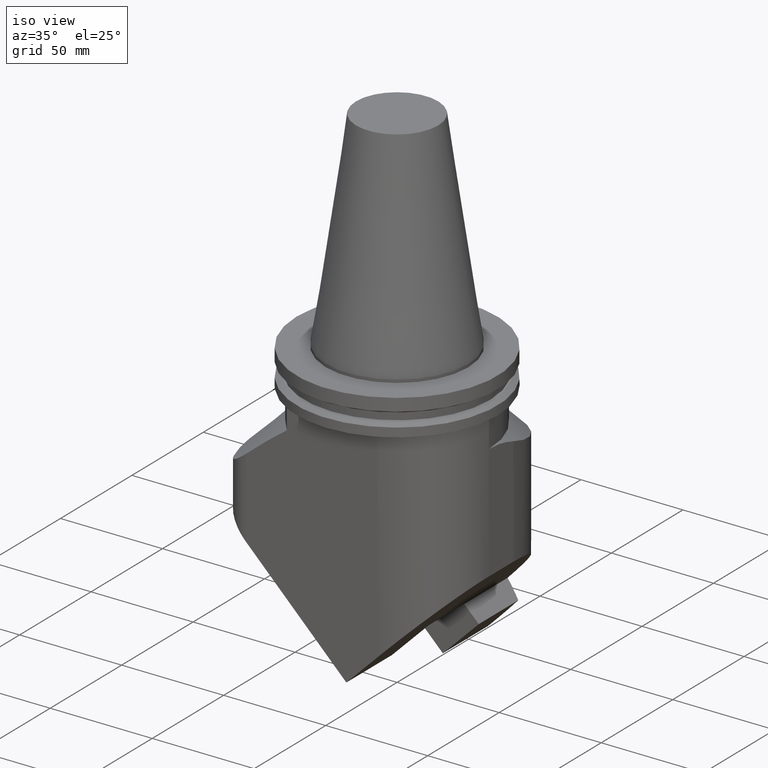
[diagram: clean part render]
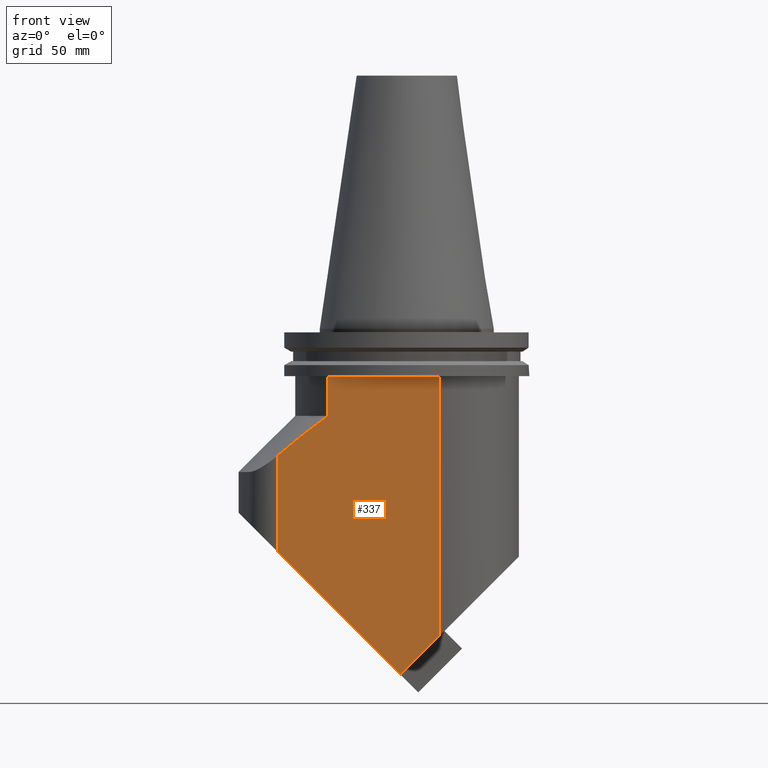
[diagram: tour spotlight — one face highlighted and labeled with its STEP entity id]
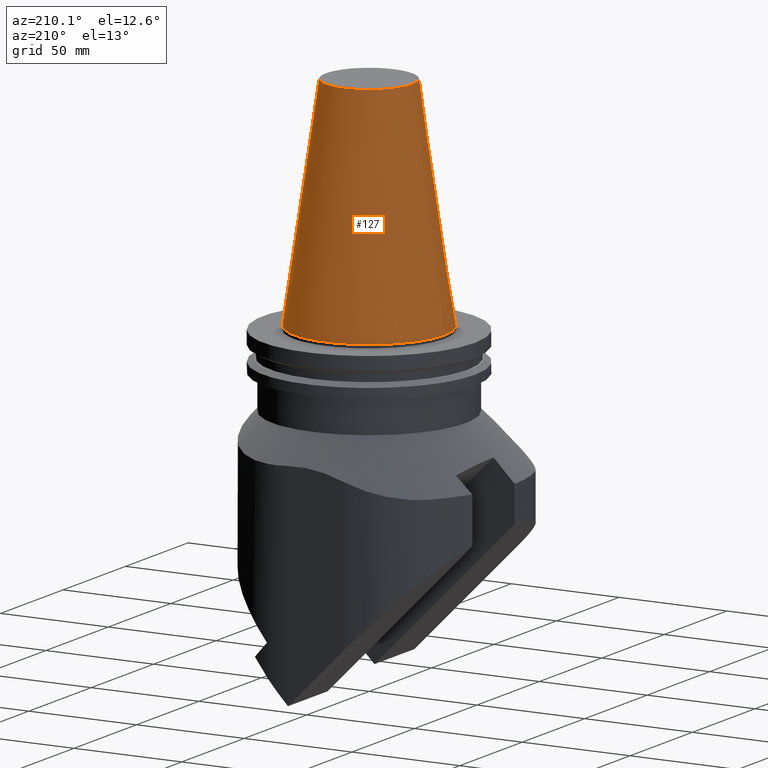
[diagram: tour spotlight — one face highlighted and labeled with its STEP entity id]
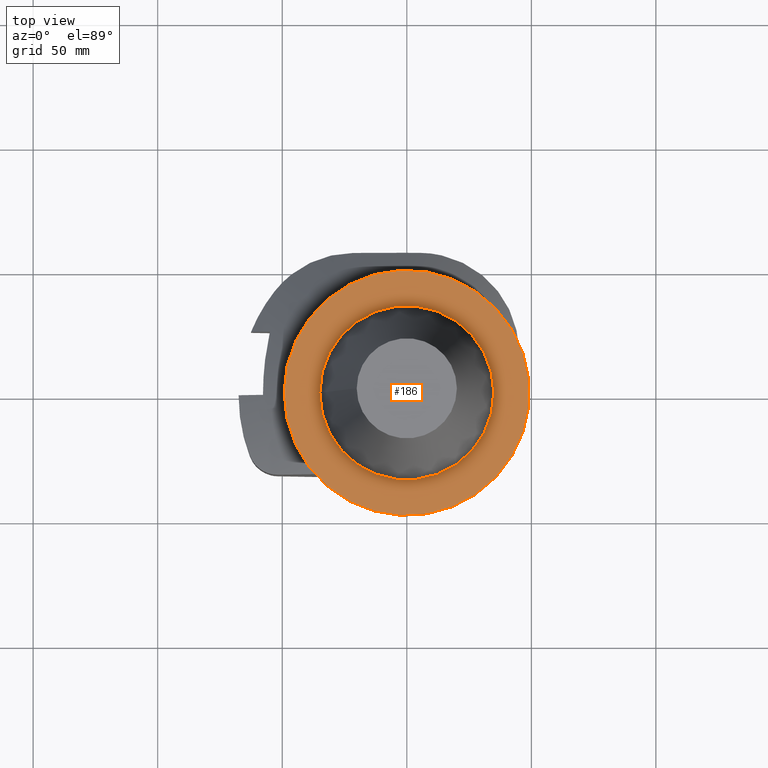
[diagram: tour spotlight — one face highlighted and labeled with its STEP entity id]
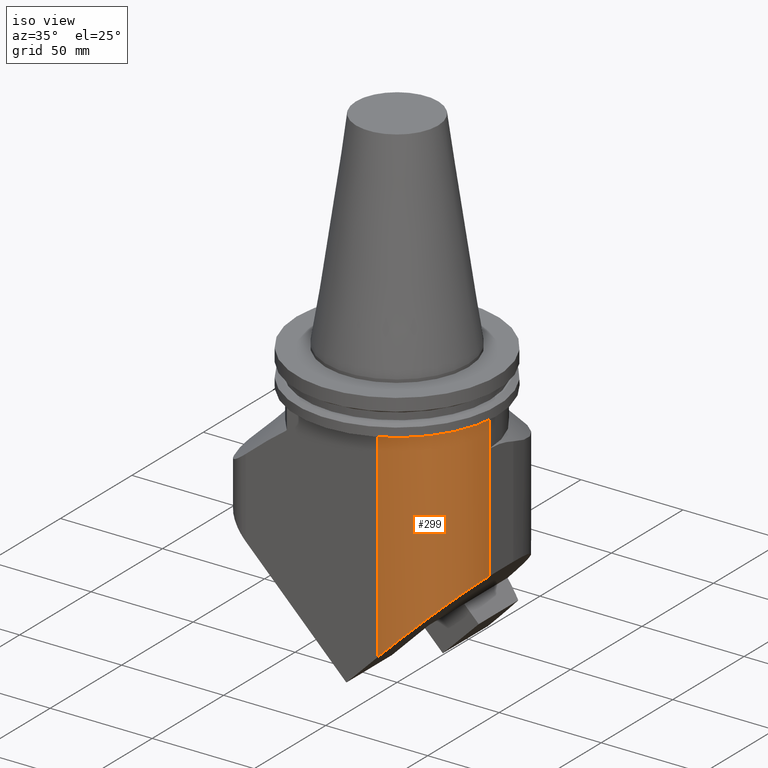
[diagram: tour spotlight — one face highlighted and labeled with its STEP entity id]
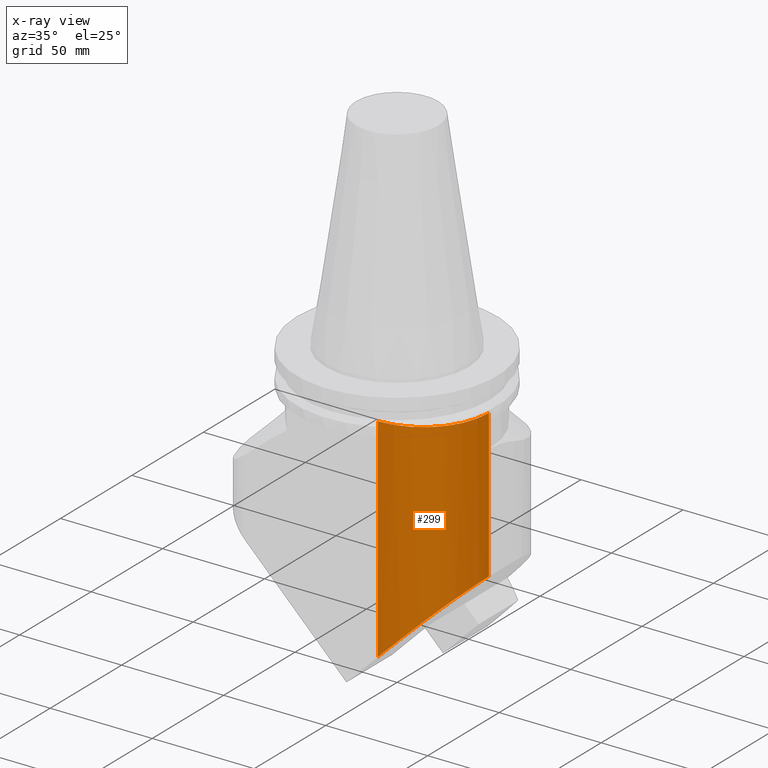
[diagram: x-ray of the same camera — body ghosted, this tour face saturated]
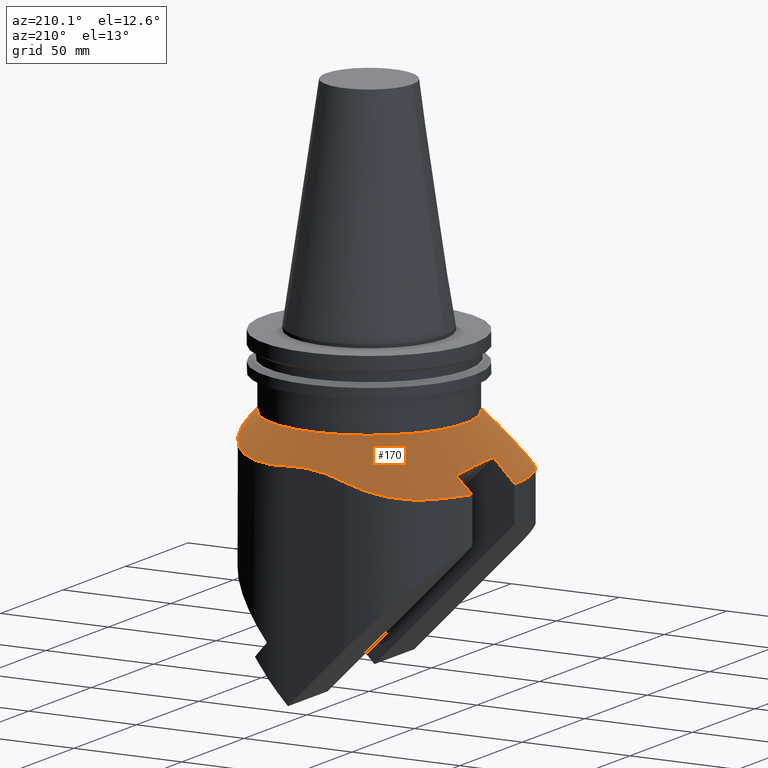
[diagram: tour spotlight — one face highlighted and labeled with its STEP entity id]
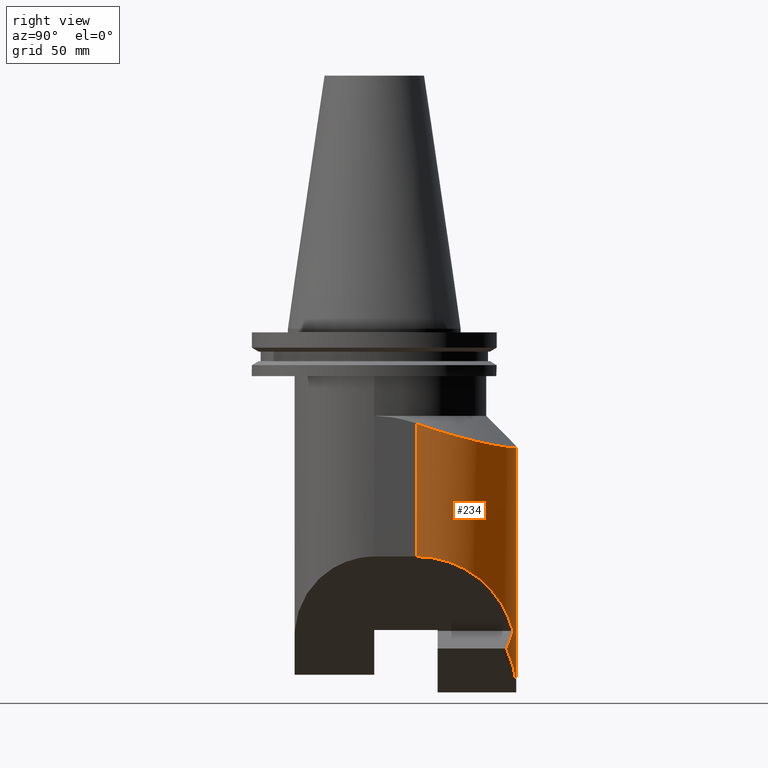
[diagram: tour spotlight — one face highlighted and labeled with its STEP entity id]
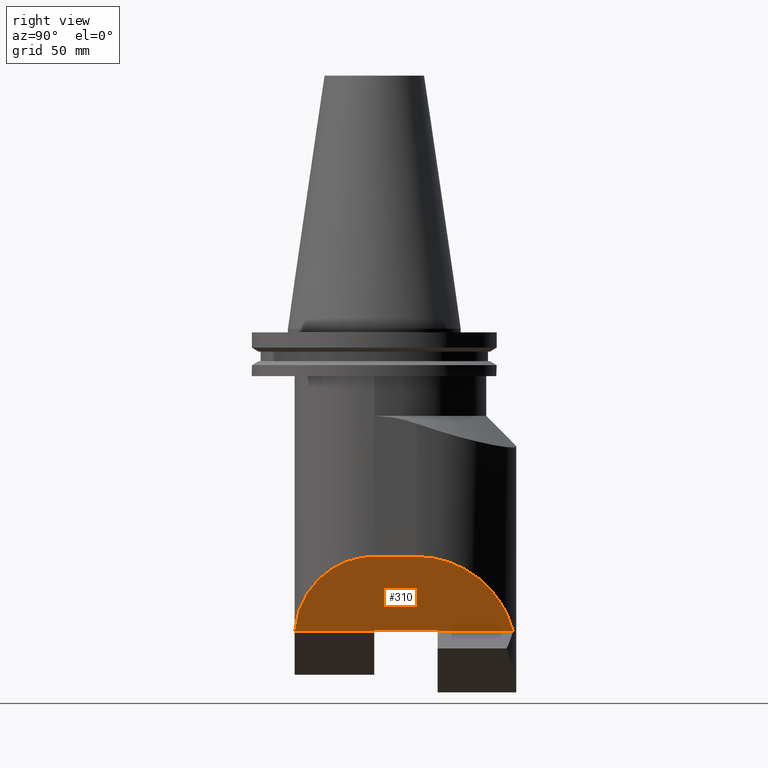
[diagram: tour spotlight — one face highlighted and labeled with its STEP entity id]
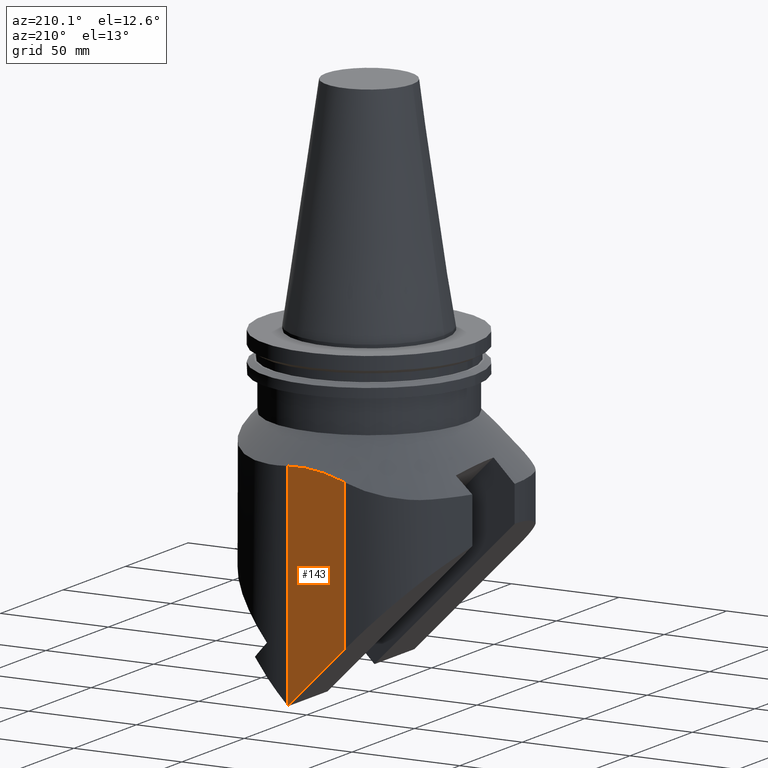
[diagram: tour spotlight — one face highlighted and labeled with its STEP entity id]
A machine part: a face-by-face anatomy tour. The part has 32 B-rep faces; the first image is the clean iso view, then the 8 largest visible faces are spotlighted one at a time (largest first), each with its STEP entity span.

Face 1 — front view, entity #337. In plain terms, the highlighted planar face has unit normal (0, 1, -0).
Definition (entity closure, byte-faithful):
#134=EDGE_CURVE('Unnamed[1]',#390,#391,#392,.T.);
#212=EDGE_CURVE('Unnamed[1]',#515,#486,#516,.T.);
#236=EDGE_CURVE('Unnamed[1]',#515,#548,#549,.T.);
#250=EDGE_CURVE('Unnamed[1]',#565,#507,#566,.T.);
#263=EDGE_CURVE('Unnamed[1]',#507,#391,#581,.T.);
#280=EDGE_CURVE('Unnamed[1]',#486,#390,#603,.T.);
#288=EDGE_CURVE('Unnamed[1]',#548,#565,#613,.T.);
#337=ADVANCED_FACE('Unnamed[1]',(#674),#675,.F.);
#390=VERTEX_POINT('',#726);
#391=VERTEX_POINT('',#727);
#392=LINE('',#728,#729);
#486=VERTEX_POINT('',#865);
#507=VERTEX_POINT('',#894);
#515=VERTEX_POINT('',#939);
#516=LINE('',#940,#941);
#548=VERTEX_POINT('',#1004);
#549=LINE('',#1005,#1006);
#565=VERTEX_POINT('',#1047);
#566=LINE('',#1048,#1049);
#581=LINE('',#1069,#1070);
#603=LINE('',#1101,#1102);
#613=(B_SPLINE_CURVE(2,(#1120,#1121,#1122),.UNSPECIFIED.,.F.,.F.)B_SPLINE_CURVE_WITH_KNOTS((3,3),(0.0,35.7722103822643),.UNSPECIFIED.)RATIONAL_B_SPLINE_CURVE((1.0,1.03199130937442,1.0))BOUNDED_CURVE()REPRESENTATION_ITEM('')GEOMETRIC_REPRESENTATION_ITEM()CURVE());
#674=FACE_OUTER_BOUND('',#1216,.T.);
#675=PLANE('',#1217);
#726=CARTESIAN_POINT('',(12.999999999998,-32.0000000000002,-123.457864380383));
#727=CARTESIAN_POINT('',(12.9999999999979,-32.0000000000002,-19.05));
#728=CARTESIAN_POINT('',(12.999999999998,-32.0000000000002,-306.209870642012));
#729=VECTOR('',#1287,1.0);
#865=CARTESIAN_POINT('',(-2.47106781436026,-32.0000000000002,-138.92893218564));
#894=CARTESIAN_POINT('',(-31.6385840391121,-32.0000000000002,-19.0500000000001));
#939=CARTESIAN_POINT('',(-51.7711309515275,-32.0000000000002,-89.6288690484723));
#940=CARTESIAN_POINT('',(20.6310762915623,-32.0000000000002,-162.031076291562));
#941=VECTOR('',#1423,1.0);
#1004=CARTESIAN_POINT('',(-51.7711309515275,-32.0000000000002,-50.8625500615968));
#1005=CARTESIAN_POINT('',(-51.7711309515274,-32.0000000000002,-306.209870642012));
#1006=VECTOR('',#1465,1.0);
#1047=CARTESIAN_POINT('',(-31.6385840391123,-32.0000000000002,-35.0000000000011));
#1048=CARTESIAN_POINT('',(-31.6385840391122,-32.0000000000002,-27.0250000000006));
#1049=VECTOR('',#1475,1.0);
#1069=CARTESIAN_POINT('',(-51.7711309515275,-32.0000000000002,-19.05));
#1070=VECTOR('',#1494,1.0);
#1101=CARTESIAN_POINT('',(-44.118187132842,-32.0000000000002,-180.576051479621));
#1102=VECTOR('',#1522,1.0);
#1120=CARTESIAN_POINT('',(-59.4327350876601,-32.0000000000002,-57.5000000000014));
#1121=CARTESIAN_POINT('',(-42.7562444585315,-32.0000000000002,-42.8166007444035));
#1122=CARTESIAN_POINT('',(-31.6385840391124,-32.0000000000002,-35.0000000000012));
#1216=EDGE_LOOP('',(#1610,#1611,#1612,#1613,#1614,#1615,#1616));
#1217=AXIS2_PLACEMENT_3D('',#1617,#1618,#1619);
#1287=DIRECTION('',(-1.22464679914735E-016,2.22044604925031E-016,1.0));
#1423=DIRECTION('',(0.707106781186548,-2.86902654303702E-016,-0.707106781186547));
#1465=DIRECTION('',(-1.22464679914735E-016,2.22044604925031E-016,1.0));
#1475=DIRECTION('',(-1.22464679914735E-016,2.22044604925031E-016,1.0));
#1494=DIRECTION('',(1.0,-1.83697019872103E-016,1.22464679914735E-016));
#1522=DIRECTION('',(0.707106781394538,2.7115837348663E-017,0.707106780978557));
#1610=ORIENTED_EDGE('',*,*,#280,.T.);
#1611=ORIENTED_EDGE('',*,*,#134,.T.);
#1612=ORIENTED_EDGE('',*,*,#263,.F.);
#1613=ORIENTED_EDGE('',*,*,#250,.F.);
#1614=ORIENTED_EDGE('',*,*,#288,.F.);
#1615=ORIENTED_EDGE('',*,*,#236,.F.);
#1616=ORIENTED_EDGE('',*,*,#212,.T.);
#1617=CARTESIAN_POINT('',(-19.3855654757647,-32.0000000000002,-306.209870642012));
#1618=DIRECTION('',(1.83697019872103E-016,1.0,-2.22044604925031E-016));
#1619=DIRECTION('',(-1.0,1.83697019872103E-016,-1.22464679914735E-016));

Face 2 — auxiliary view, entity #127. In plain terms, the highlighted conical surface has half-angle 8.297 deg.
Definition (entity closure, byte-faithful):
#127=ADVANCED_FACE('Unnamed[1]',(#377,#378),#379,.T.);
#296=EDGE_CURVE('Unnamed[1]',#622,#622,#623,.T.);
#312=EDGE_CURVE('Unnamed[1]',#641,#641,#642,.T.);
#377=FACE_BOUND('',#709,.T.);
#378=FACE_BOUND('',#710,.T.);
#379=CONICAL_SURFACE('',#711,27.5166666648609,0.144812498273746);
#622=VERTEX_POINT('',#1143);
#623=CIRCLE('',#1144,20.1083333297217);
#641=VERTEX_POINT('',#1172);
#642=CIRCLE('',#1173,34.925);
#709=EDGE_LOOP('',(#1275));
#710=EDGE_LOOP('',(#1276));
#711=AXIS2_PLACEMENT_3D('',#1277,#1278,#1279);
#1143=CARTESIAN_POINT('',(-20.1083333297217,2.62535727676479E-014,101.6));
#1144=AXIS2_PLACEMENT_3D('',#1531,#1532,#1533);
#1172=CARTESIAN_POINT('',(-34.925,6.4156184190332E-015,-4.27707894602213E-015));
#1173=AXIS2_PLACEMENT_3D('',#1562,#1563,#1564);
#1275=ORIENTED_EDGE('',*,*,#312,.F.);
#1276=ORIENTED_EDGE('',*,*,#296,.T.);
#1277=CARTESIAN_POINT('',(-6.22120573966855E-015,1.12798659301916E-014,50.8));
#1278=DIRECTION('',(1.22464679914735E-016,-2.22044604925031E-016,-1.0));
#1279=DIRECTION('',(-1.0,1.83697019872103E-016,-1.22464679914735E-016));
#1531=CARTESIAN_POINT('',(-1.24424114793371E-014,2.25597318603832E-014,101.6));
#1532=DIRECTION('',(1.22464679914735E-016,-2.22044604925031E-016,-1.0));
#1533=DIRECTION('',(-1.0,1.83697019872103E-016,-1.22464679914735E-016));
#1562=CARTESIAN_POINT('',(0.0,0.0,0.0));
#1563=DIRECTION('',(1.22464679914735E-016,-2.22044604925031E-016,-1.0));
#1564=DIRECTION('',(-1.0,1.83697019872103E-016,-1.22464679914735E-016));

Face 3 — top view, entity #186. In plain terms, the highlighted planar face has unit normal (-0, 0, 1).
Definition (entity closure, byte-faithful):
#124=EDGE_CURVE('Unnamed[1]',#373,#373,#374,.T.);
#186=ADVANCED_FACE('Unnamed[1]',(#470,#471),#472,.T.);
#224=EDGE_CURVE('Unnamed[1]',#531,#531,#532,.T.);
#373=VERTEX_POINT('',#704);
#374=CIRCLE('',#705,49.2125);
#470=FACE_OUTER_BOUND('',#843,.T.);
#471=FACE_BOUND('',#844,.T.);
#472=PLANE('',#845);
#531=VERTEX_POINT('',#971);
#532=CIRCLE('',#972,34.925);
#704=CARTESIAN_POINT('',(-49.2125,8.70712268306832E-015,-1.50000000000001));
#705=AXIS2_PLACEMENT_3D('',#1271,#1272,#1273);
#843=EDGE_LOOP('',(#1386));
#844=EDGE_LOOP('',(#1387));
#845=AXIS2_PLACEMENT_3D('',#1388,#1389,#1390);
#971=CARTESIAN_POINT('',(-34.925,6.08255151164565E-015,-1.5));
#972=AXIS2_PLACEMENT_3D('',#1443,#1444,#1445);
#1271=CARTESIAN_POINT('',(1.83697019872103E-016,-3.33066907387547E-016,-1.5));
#1272=DIRECTION('',(1.22464679914735E-016,-2.22044604925031E-016,-1.0));
#1273=DIRECTION('',(-1.0,1.83697019872103E-016,-1.22464679914735E-016));
#1386=ORIENTED_EDGE('',*,*,#124,.F.);
#1387=ORIENTED_EDGE('',*,*,#224,.T.);
#1388=CARTESIAN_POINT('',(-42.06875,7.39483709735699E-015,-1.50000000000001));
#1389=DIRECTION('',(-1.22464679914735E-016,2.22044604925031E-016,1.0));
#1390=DIRECTION('',(1.0,-1.83697019872103E-016,1.22464679914735E-016));
#1443=CARTESIAN_POINT('',(1.83697019872103E-016,-3.33066907387547E-016,-1.5));
#1444=DIRECTION('',(1.22464679914735E-016,-2.22044604925031E-016,-1.0));
#1445=DIRECTION('',(-1.0,1.83697019872103E-016,-1.22464679914735E-016));

Face 4 — iso view, entity #299. An x-ray twin of the same camera follows (body ghosted, this face saturated) — the face is partly hidden behind the body. In plain terms, the highlighted cylindrical surface (partial cylindrical patch) has radius 32 mm, axis along (-0, 0, 1).
Definition (entity closure, byte-faithful):
#134=EDGE_CURVE('Unnamed[1]',#390,#391,#392,.T.);
#157=EDGE_CURVE('Unnamed[1]',#420,#427,#428,.T.);
#197=EDGE_CURVE('Unnamed[1]',#390,#489,#490,.T.);
#246=EDGE_CURVE('Unnamed[1]',#427,#508,#561,.T.);
#299=ADVANCED_FACE('Unnamed[1]',(#626),#627,.T.);
#319=EDGE_CURVE('Unnamed[1]',#391,#508,#651,.T.);
#329=EDGE_CURVE('Unnamed[1]',#489,#420,#664,.T.);
#390=VERTEX_POINT('',#726);
#391=VERTEX_POINT('',#727);
#392=LINE('',#728,#729);
#420=VERTEX_POINT('',#777);
#427=VERTEX_POINT('',#787);
#428=LINE('',#788,#789);
#489=VERTEX_POINT('',#870);
#490=ELLIPSE('',#871,45.2548339826276,32.0);
#508=VERTEX_POINT('',#895);
#561=LINE('',#1039,#1040);
#626=FACE_OUTER_BOUND('',#1148,.T.);
#627=CYLINDRICAL_SURFACE('',#1149,32.0);
#651=CIRCLE('',#1185,32.0);
#664=ELLIPSE('',#1202,45.2548340026292,32.0);
#726=CARTESIAN_POINT('',(12.999999999998,-32.0000000000002,-123.457864380383));
#727=CARTESIAN_POINT('',(12.9999999999979,-32.0000000000002,-19.05));
#728=CARTESIAN_POINT('',(12.999999999998,-32.0000000000002,-306.209870642012));
#729=VECTOR('',#1287,1.0);
#777=CARTESIAN_POINT('',(44.9999999999966,-1.42260928977808E-013,-91.4578643728107));
#787=CARTESIAN_POINT('',(45.0000000000004,-4.0956928841068E-013,-35.0000000000011));
#788=CARTESIAN_POINT('',(45.0000000000001,-1.91904888245347E-013,-306.209870642012));
#789=VECTOR('',#1319,1.0);
#870=CARTESIAN_POINT('',(15.1358910394405,-31.9286387036411,-121.321973342197));
#871=AXIS2_PLACEMENT_3D('',#1402,#1403,#1404);
#895=CARTESIAN_POINT('',(45.0,-1.28142588218318E-013,-19.05));
#1039=CARTESIAN_POINT('',(45.0000000000007,-4.69789976989156E-013,-306.209870642012));
#1040=VECTOR('',#1473,1.0);
#1148=EDGE_LOOP('',(#1535,#1536,#1537,#1538,#1539,#1540));
#1149=AXIS2_PLACEMENT_3D('',#1541,#1542,#1543);
#1185=AXIS2_PLACEMENT_3D('',#1579,#1580,#1581);
#1202=AXIS2_PLACEMENT_3D('',#1599,#1600,#1601);
#1287=DIRECTION('',(-1.22464679914735E-016,2.22044604925031E-016,1.0));
#1319=DIRECTION('',(-1.22464679914735E-016,2.22044604925031E-016,1.0));
#1402=CARTESIAN_POINT('',(13.0,-1.43488051701183E-013,-123.457864380381));
#1403=DIRECTION('',(-0.707106780978557,2.86902654311677E-016,0.707106781394538));
#1404=DIRECTION('',(-0.707106781394538,5.94797683003579E-017,-0.707106780978557));
#1473=DIRECTION('',(-1.22464679914735E-016,2.22044604925031E-016,1.0));
#1535=ORIENTED_EDGE('',*,*,#197,.T.);
#1536=ORIENTED_EDGE('',*,*,#329,.T.);
#1537=ORIENTED_EDGE('',*,*,#157,.T.);
#1538=ORIENTED_EDGE('',*,*,#246,.T.);
#1539=ORIENTED_EDGE('',*,*,#319,.F.);
#1540=ORIENTED_EDGE('',*,*,#134,.F.);
#1541=CARTESIAN_POINT('',(13.0,-1.84067148730804E-013,-306.209870642012));
#1542=DIRECTION('',(-1.22464679914735E-016,2.22044604925031E-016,1.0));
#1543=DIRECTION('',(3.06161699786838E-016,1.0,-2.22044604925031E-016));
#1579=CARTESIAN_POINT('',(13.0,-1.20304848703775E-013,-19.05));
#1580=DIRECTION('',(1.22464679914735E-016,3.83475850529283E-017,1.0));
#1581=DIRECTION('',(3.06161699786838E-016,1.0,-3.83475850529283E-017));
#1599=CARTESIAN_POINT('',(13.0,-1.43488051701602E-013,-123.457864382269));
#1600=DIRECTION('',(-0.707106781291082,2.86902654299693E-016,0.707106781082013));
#1601=DIRECTION('',(-0.707106781082013,5.94797681352802E-017,-0.707106781291082));

Face 5 — auxiliary view, entity #170. In plain terms, the highlighted conical surface has half-angle 45 deg.
Definition (entity closure, byte-faithful):
#138=EDGE_CURVE('Unnamed[1]',#397,#398,#399,.T.);
#140=EDGE_CURVE('Unnamed[1]',#387,#397,#401,.T.);
#159=EDGE_CURVE('Unnamed[1]',#430,#431,#432,.T.);
#170=ADVANCED_FACE('Unnamed[1]',(#446),#447,.T.);
#210=EDGE_CURVE('Unnamed[1]',#511,#512,#513,.T.);
#217=EDGE_CURVE('Unnamed[1]',#512,#475,#522,.T.);
#226=EDGE_CURVE('Unnamed[1]',#427,#511,#534,.T.);
#240=EDGE_CURVE('Unnamed[1]',#430,#548,#554,.T.);
#276=EDGE_CURVE('Unnamed[1]',#398,#431,#599,.T.);
#288=EDGE_CURVE('Unnamed[1]',#548,#565,#613,.T.);
#327=EDGE_CURVE('Unnamed[1]',#565,#427,#662,.T.);
#339=EDGE_CURVE('Unnamed[1]',#475,#450,#677,.T.);
#346=EDGE_CURVE('Unnamed[1]',#387,#450,#685,.T.);
#387=VERTEX_POINT('',#721);
#397=VERTEX_POINT('',#736);
#398=VERTEX_POINT('',#737);
#399=B_SPLINE_CURVE_WITH_KNOTS('',2,(#738,#739,#740),.UNSPECIFIED.,.F.,.F.,(3,3),(0.0,98.8923976256948),.UNSPECIFIED.);
#401=(B_SPLINE_CURVE(2,(#744,#745,#746),.UNSPECIFIED.,.F.,.F.)B_SPLINE_CURVE_WITH_KNOTS((3,3),(0.0,19.1447775241437),.UNSPECIFIED.)RATIONAL_B_SPLINE_CURVE((1.0,1.00680216366521,1.0))BOUNDED_CURVE()REPRESENTATION_ITEM('')GEOMETRIC_REPRESENTATION_ITEM()CURVE());
#427=VERTEX_POINT('',#787);
#430=VERTEX_POINT('',#792);
#431=VERTEX_POINT('',#793);
#432=CIRCLE('',#794,67.5);
#446=FACE_OUTER_BOUND('',#812,.T.);
#447=CONICAL_SURFACE('',#813,56.2499999999999,0.785398163397447);
#450=VERTEX_POINT('',#817);
#475=VERTEX_POINT('',#849);
#511=VERTEX_POINT('',#899);
#512=VERTEX_POINT('',#900);
#513=B_SPLINE_CURVE_WITH_KNOTS('',3,(#901,#902,#903,#904,#905,#906,#907,#908,#909,#910,#911,#912,#913,#914,#915,#916,#917,#918,#919,#920,#921,#922,#923,#924,#925,#926,#927,#928,#929,#930,#931,#932,#933,#934,#935,#936),.UNSPECIFIED.,.F.,.F.,(4,2,2,2,2,2,2,2,2,2,2,2,2,2,2,2,2,4),(7.59683898077303,11.3952584711595,15.1936779615461,18.9920974519326,22.7905169423191,26.5889364327056,30.3873559230921,34.2748797688303,38.1624036145685,42.0499274603067,45.9374513060449,49.8249751517831,53.7124989975213,57.6000228432595,61.4875466889976,65.3750705347358,69.262594380474,73.1501182262122),.UNSPECIFIED.);
#522=(B_SPLINE_CURVE(2,(#950,#951,#952),.UNSPECIFIED.,.F.,.F.)B_SPLINE_CURVE_WITH_KNOTS((3,3),(0.0,75.2994023880676),.UNSPECIFIED.)RATIONAL_B_SPLINE_CURVE((1.0,1.1842105263158,1.0))BOUNDED_CURVE()REPRESENTATION_ITEM('')GEOMETRIC_REPRESENTATION_ITEM()CURVE());
#534=(B_SPLINE_CURVE(2,(#976,#977,#978,#979,#980),.UNSPECIFIED.,.F.,.F.)B_SPLINE_CURVE_WITH_KNOTS((3,2,3),(0.0,55.8128554370287,111.625710874057),.UNSPECIFIED.)RATIONAL_B_SPLINE_CURVE((1.0,1.11803398875034,1.0,1.11803398875033,1.0))BOUNDED_CURVE()REPRESENTATION_ITEM('')GEOMETRIC_REPRESENTATION_ITEM()CURVE());
#548=VERTEX_POINT('',#1004);
#554=B_SPLINE_CURVE_WITH_KNOTS('',3,(#1014,#1015,#1016,#1017,#1018,#1019,#1020,#1021,#1022,#1023,#1024,#1025,#1026,#1027,#1028,#1029),.UNSPECIFIED.,.F.,.F.,(4,2,2,2,2,2,2,4),(38.7333306227759,41.5550105514015,44.3766904800272,47.1983704086528,50.0200503372784,52.841730265904,56.274682778411,59.7076352909181),.UNSPECIFIED.);
#565=VERTEX_POINT('',#1047);
#599=LINE('',#1093,#1094);
#613=(B_SPLINE_CURVE(2,(#1120,#1121,#1122),.UNSPECIFIED.,.F.,.F.)B_SPLINE_CURVE_WITH_KNOTS((3,3),(0.0,35.7722103822643),.UNSPECIFIED.)RATIONAL_B_SPLINE_CURVE((1.0,1.03199130937442,1.0))BOUNDED_CURVE()REPRESENTATION_ITEM('')GEOMETRIC_REPRESENTATION_ITEM()CURVE());
#662=CIRCLE('',#1199,44.9999999999998);
#677=B_SPLINE_CURVE_WITH_KNOTS('',3,(#1220,#1221,#1222,#1223,#1224,#1225,#1226,#1227,#1228,#1229,#1230,#1231,#1232,#1233,#1234,#1235,#1236,#1237,#1238,#1239,#1240,#1241),.UNSPECIFIED.,.F.,.F.,(4,2,2,2,2,2,2,2,2,2,4),(36.5646431316413,40.0970978492643,43.6295525668874,47.1620072845105,50.6944620021335,54.2269167197566,57.7593714373796,61.3000566152849,64.8407417931902,68.3814269710955,71.9221121490008),.UNSPECIFIED.);
#685=CIRCLE('',#1253,67.5);
#721=CARTESIAN_POINT('',(-62.5387080135175,25.4000000000001,-57.5000000000014));
#736=CARTESIAN_POINT('',(-54.9460788402689,25.4000000000001,-50.5328966754542));
#737=CARTESIAN_POINT('',(-57.7394877578609,-1.62412793335744E-013,-47.7394877578623));
#738=CARTESIAN_POINT('',(-47.9785182205302,47.4802435168801,-57.500457295193));
#739=CARTESIAN_POINT('',(-67.5004572951916,3.96670777121482E-015,-37.9785182205315));
#740=CARTESIAN_POINT('',(-47.9785182205302,-47.4802435168801,-57.5004572951929));
#744=CARTESIAN_POINT('',(-62.5392015863648,25.4000000000001,-57.500457295193));
#745=CARTESIAN_POINT('',(-54.7060164035313,25.4000000000001,-50.2430079853281));
#746=CARTESIAN_POINT('',(-48.3663707612884,25.4000000000001,-44.630264694751));
#787=CARTESIAN_POINT('',(45.0000000000004,-4.0956928841068E-013,-35.0000000000011));
#792=CARTESIAN_POINT('',(-62.9648889950985,-24.3243243243246,-57.5000000000014));
#793=CARTESIAN_POINT('',(-67.5,-1.62787085409109E-013,-57.5000000000014));
#794=AXIS2_PLACEMENT_3D('',#1320,#1321,#1322);
#812=EDGE_LOOP('',(#1344,#1345,#1346,#1347,#1348,#1349,#1350,#1351,#1352,#1353,#1354,#1355));
#813=AXIS2_PLACEMENT_3D('',#1356,#1357,#1358);
#817=CARTESIAN_POINT('',(-53.0573718793535,41.7272727272725,-57.5000000000028));
#849=CARTESIAN_POINT('',(-21.6159663212192,56.9999999999998,-50.9610531405111));
#899=CARTESIAN_POINT('',(44.999999999998,16.9999999999998,-38.1040538832221));
#900=CARTESIAN_POINT('',(4.99999999999799,56.9999999999998,-47.2188780036809));
#901=CARTESIAN_POINT('',(44.8449043178896,13.480966056136,-36.8273626108441));
#902=CARTESIAN_POINT('',(44.9548759064806,14.726139468778,-37.2911471319575));
#903=CARTESIAN_POINT('',(45.0074359778779,15.9896326450004,-37.7485300202418));
#904=CARTESIAN_POINT('',(44.9908644054839,18.5318419687408,-38.6435146795232));
#905=CARTESIAN_POINT('',(44.9217325026435,19.8105557877731,-39.0811230597881));
#906=CARTESIAN_POINT('',(44.659787187088,22.3614527702666,-39.930628645458));
#907=CARTESIAN_POINT('',(44.4668692978473,23.6346363997586,-40.3428652678466));
#908=CARTESIAN_POINT('',(43.9594879857914,26.1548057442312,-41.1372274176844));
#909=CARTESIAN_POINT('',(43.6450197988469,27.4017888417411,-41.5193582062416));
#910=CARTESIAN_POINT('',(42.9018338114825,29.8485703459827,-42.2494304393416));
#911=CARTESIAN_POINT('',(42.4730730011786,31.0484807678144,-42.5974101794663));
#912=CARTESIAN_POINT('',(41.5134972013183,33.3815607975594,-43.2561406844291));
#913=CARTESIAN_POINT('',(40.9826729224173,34.5147258299549,-43.5668941228794));
#914=CARTESIAN_POINT('',(39.8229200200612,36.7219341116789,-44.1559204593225));
#915=CARTESIAN_POINT('',(39.1716316001734,37.8326739585999,-44.4435678211614));
#916=CARTESIAN_POINT('',(37.7420980957379,40.0142504282024,-44.9907296007199));
#917=CARTESIAN_POINT('',(36.9638581019185,41.085088266512,-45.2502524718007));
#918=CARTESIAN_POINT('',(35.2880733628602,43.1612750735741,-45.7352931475343));
#919=CARTESIAN_POINT('',(34.3904376035855,44.1667442794914,-45.9608460159771));
#920=CARTESIAN_POINT('',(32.4879566509907,46.0902398826595,-46.3736669714297));
#921=CARTESIAN_POINT('',(31.4831133811026,47.008266996805,-46.5609405822398));
#922=CARTESIAN_POINT('',(29.3827117464047,48.738537245175,-46.8943333851036));
#923=CARTESIAN_POINT('',(28.2860767963145,49.5516662044286,-47.0406263354415));
#924=CARTESIAN_POINT('',(26.0196279984941,51.0591776772913,-47.2906969309904));
#925=CARTESIAN_POINT('',(24.8498118009833,51.7535564934605,-47.3944755690023));
#926=CARTESIAN_POINT('',(22.4599701555355,53.0135274535036,-47.559242715898));
#927=CARTESIAN_POINT('',(21.239798044042,53.5791875336218,-47.620239263231));
#928=CARTESIAN_POINT('',(18.7747341153744,54.5769171324882,-47.7006424559275));
#929=CARTESIAN_POINT('',(17.5298383810349,55.0089772918582,-47.7200451466699));
#930=CARTESIAN_POINT('',(15.0434675382769,55.7402628338455,-47.7200451466699));
#931=CARTESIAN_POINT('',(13.7628856880904,56.0509901993359,-47.7006424559275));
#932=CARTESIAN_POINT('',(11.1501757868943,56.5467234916052,-47.620239263231));
#933=CARTESIAN_POINT('',(9.81804950965103,56.7317394081741,-47.559242715898));
#934=CARTESIAN_POINT('',(7.12660601409195,56.9662640778382,-47.3944755690023));
#935=CARTESIAN_POINT('',(5.76712870551985,57.015795116399,-47.2906969309904));
#936=CARTESIAN_POINT('',(4.40626973575674,56.9955933119301,-47.1656616332159));
#950=CARTESIAN_POINT('',(36.1559123795822,56.9999999999998,-57.5000000000014));
#951=CARTESIAN_POINT('',(1.51407165934585E-014,56.9999999999998,-38.1333333333343));
#952=CARTESIAN_POINT('',(-36.1559123795822,56.9999999999998,-57.5000000000014));
#976=CARTESIAN_POINT('',(44.9999999999979,-50.3115294937471,-57.5000000000013));
#977=CARTESIAN_POINT('',(44.9999999999979,-20.1246117975009,-35.0000000000012));
#978=CARTESIAN_POINT('',(44.9999999999979,-3.48673095642632E-014,-35.0000000000012));
#979=CARTESIAN_POINT('',(44.999999999998,20.1246117975009,-35.0000000000012));
#980=CARTESIAN_POINT('',(44.999999999998,50.3115294937471,-57.5000000000014));
#1004=CARTESIAN_POINT('',(-51.7711309515275,-32.0000000000002,-50.8625500615968));
#1014=CARTESIAN_POINT('',(-63.6646586312853,-21.594991953204,-57.2274678691472));
#1015=CARTESIAN_POINT('',(-63.5400017295916,-22.5245328876152,-57.4080070191237));
#1016=CARTESIAN_POINT('',(-63.3038295270655,-23.4469575910623,-57.5000000000014));
#1017=CARTESIAN_POINT('',(-62.6259484631315,-25.2016910575868,-57.5000000000014));
#1018=CARTESIAN_POINT('',(-62.1806381344915,-26.0433224222483,-57.4080070191237));
#1019=CARTESIAN_POINT('',(-61.1153437476586,-27.5871781917184,-57.0469287191707));
#1020=CARTESIAN_POINT('',(-60.4954305507463,-28.2894487089239,-56.7778315040263));
#1021=CARTESIAN_POINT('',(-59.1453894042541,-29.5104509719177,-56.0933625247054));
#1022=CARTESIAN_POINT('',(-58.4134877255997,-30.0309119143436,-55.6769952396924));
#1023=CARTESIAN_POINT('',(-56.914665977,-30.8758514527905,-54.746226850207));
#1024=CARTESIAN_POINT('',(-56.1478367592528,-31.2004338874229,-54.231773715104));
#1025=CARTESIAN_POINT('',(-54.5043466590225,-31.7228604167654,-53.0601402741039));
#1026=CARTESIAN_POINT('',(-53.5744992650333,-31.900034006663,-52.3502105609503));
#1027=CARTESIAN_POINT('',(-51.7215680295186,-32.035800356249,-50.8368533028385));
#1028=CARTESIAN_POINT('',(-50.7985304793976,-31.9944686613477,-50.0333758584401));
#1029=CARTESIAN_POINT('',(-49.9076712554609,-31.8544303094306,-49.2070973826761));
#1047=CARTESIAN_POINT('',(-31.6385840391123,-32.0000000000002,-35.0000000000011));
#1093=CARTESIAN_POINT('',(-56.2499999999999,-1.62355675077264E-013,-46.2500000000013));
#1094=VECTOR('',#1520,1.0);
#1120=CARTESIAN_POINT('',(-59.4327350876601,-32.0000000000002,-57.5000000000014));
#1121=CARTESIAN_POINT('',(-42.7562444585315,-32.0000000000002,-42.8166007444035));
#1122=CARTESIAN_POINT('',(-31.6385840391124,-32.0000000000002,-35.0000000000012));
#1199=AXIS2_PLACEMENT_3D('',#1596,#1597,#1598);
#1220=CARTESIAN_POINT('',(-21.5353910327748,56.9999188452036,-50.9324528908404));
#1221=CARTESIAN_POINT('',(-22.7049811134673,57.0022748502506,-51.3480257205299));
#1222=CARTESIAN_POINT('',(-23.8894824651919,56.9531753945699,-51.7502634805879));
#1223=CARTESIAN_POINT('',(-26.2680698506384,56.7464845302972,-52.5211842511673));
#1224=CARTESIAN_POINT('',(-27.4621535745607,56.5888903190615,-52.8898736368783));
#1225=CARTESIAN_POINT('',(-29.839570012079,56.1641476082879,-53.5883264129587));
#1226=CARTESIAN_POINT('',(-31.0238483153255,55.8968264173502,-53.9183727764331));
#1227=CARTESIAN_POINT('',(-33.3634704221499,55.2552937036799,-54.5359795110697));
#1228=CARTESIAN_POINT('',(-34.5188118946553,54.8810772017675,-54.8235435407266));
#1229=CARTESIAN_POINT('',(-36.7813597591023,54.0333670583577,-55.353530655723));
#1230=CARTESIAN_POINT('',(-37.8886732546581,53.5598253915227,-55.5959810513155));
#1231=CARTESIAN_POINT('',(-40.0375438008536,52.5255866490888,-56.0346003209848));
#1232=CARTESIAN_POINT('',(-41.079097387238,51.9648823301297,-56.2307690875808));
#1233=CARTESIAN_POINT('',(-43.0828666031652,50.7718075903082,-56.5776027544454));
#1234=CARTESIAN_POINT('',(-44.079598217103,50.1186009289106,-56.734153407756));
#1235=CARTESIAN_POINT('',(-46.0353785835207,48.7040816016791,-57.0067589052658));
#1236=CARTESIAN_POINT('',(-46.9944280792531,47.9427711241,-57.1228197716458));
#1237=CARTESIAN_POINT('',(-48.8527199168296,46.3203113832659,-57.3100798577761));
#1238=CARTESIAN_POINT('',(-49.7520668877076,45.4590745791145,-57.3812941350529));
#1239=CARTESIAN_POINT('',(-51.4723026282612,43.6487947815273,-57.4763543907143));
#1240=CARTESIAN_POINT('',(-52.293192444024,42.6997529075624,-57.5002027574508));
#1241=CARTESIAN_POINT('',(-53.0672554428896,41.7147003337101,-57.4999986975727));
#1253=AXIS2_PLACEMENT_3D('',#1626,#1627,#1628);
#1320=CARTESIAN_POINT('',(7.04171909509744E-015,-1.27675647831896E-014,-57.5000000000014));
#1321=DIRECTION('',(1.22464679914735E-016,-2.22044604925031E-016,-1.0));
#1322=DIRECTION('',(-1.0,1.83697019872103E-016,-1.22464679914735E-016));
#1344=ORIENTED_EDGE('',*,*,#140,.T.);
#1345=ORIENTED_EDGE('',*,*,#138,.T.);
#1346=ORIENTED_EDGE('',*,*,#276,.T.);
#1347=ORIENTED_EDGE('',*,*,#159,.F.);
#1348=ORIENTED_EDGE('',*,*,#240,.T.);
#1349=ORIENTED_EDGE('',*,*,#288,.T.);
#1350=ORIENTED_EDGE('',*,*,#327,.T.);
#1351=ORIENTED_EDGE('',*,*,#226,.T.);
#1352=ORIENTED_EDGE('',*,*,#210,.T.);
#1353=ORIENTED_EDGE('',*,*,#217,.T.);
#1354=ORIENTED_EDGE('',*,*,#339,.T.);
#1355=ORIENTED_EDGE('',*,*,#346,.F.);
#1356=CARTESIAN_POINT('',(5.66399144605666E-015,-1.0269562977783E-014,-46.2500000000013));
#1357=DIRECTION('',(1.22464679914735E-016,-2.22044604925031E-016,-1.0));
#1358=DIRECTION('',(-1.0,1.83697019872103E-016,-1.22464679914735E-016));
#1520=DIRECTION('',(-0.707106781186546,-2.71158374330517E-017,-0.707106781186549));
#1596=CARTESIAN_POINT('',(4.28626379701587E-015,-7.77156117237635E-015,-35.0000000000012));
#1597=DIRECTION('',(1.22464679914735E-016,-2.22044604925031E-016,-1.0));
#1598=DIRECTION('',(-1.0,1.83697019872103E-016,-1.22464679914735E-016));
#1626=CARTESIAN_POINT('',(7.04171909509744E-015,-1.27675647831896E-014,-57.5000000000014));
#1627=DIRECTION('',(1.22464679914735E-016,-2.22044604925031E-016,-1.0));
#1628=DIRECTION('',(-1.0,1.83697019872103E-016,-1.22464679914735E-016));

Face 6 — right view, entity #234. In plain terms, the highlighted cylindrical surface (partial cylindrical patch) has radius 40 mm, axis along (-0, 0, 1).
Definition (entity closure, byte-faithful):
#167=EDGE_CURVE('Unnamed[1]',#421,#442,#443,.T.);
#204=EDGE_CURVE('Unnamed[1]',#442,#501,#502,.T.);
#210=EDGE_CURVE('Unnamed[1]',#511,#512,#513,.T.);
#234=ADVANCED_FACE('Unnamed[1]',(#545),#546,.T.);
#248=EDGE_CURVE('Unnamed[1]',#492,#512,#563,.T.);
#252=EDGE_CURVE('Unnamed[1]',#421,#511,#568,.T.);
#303=EDGE_CURVE('Unnamed[1]',#501,#492,#631,.T.);
#421=VERTEX_POINT('',#778);
#442=VERTEX_POINT('',#807);
#443=ELLIPSE('',#808,56.5685425032865,40.0);
#492=VERTEX_POINT('',#874);
#501=VERTEX_POINT('',#886);
#502=ELLIPSE('',#887,56.5685424481528,40.0);
#511=VERTEX_POINT('',#899);
#512=VERTEX_POINT('',#900);
#513=B_SPLINE_CURVE_WITH_KNOTS('',3,(#901,#902,#903,#904,#905,#906,#907,#908,#909,#910,#911,#912,#913,#914,#915,#916,#917,#918,#919,#920,#921,#922,#923,#924,#925,#926,#927,#928,#929,#930,#931,#932,#933,#934,#935,#936),.UNSPECIFIED.,.F.,.F.,(4,2,2,2,2,2,2,2,2,2,2,2,2,2,2,2,2,4),(7.59683898077303,11.3952584711595,15.1936779615461,18.9920974519326,22.7905169423191,26.5889364327056,30.3873559230921,34.2748797688303,38.1624036145685,42.0499274603067,45.9374513060449,49.8249751517831,53.7124989975213,57.6000228432595,61.4875466889976,65.3750705347358,69.262594380474,73.1501182262122),.UNSPECIFIED.);
#545=FACE_OUTER_BOUND('',#1000,.T.);
#546=CYLINDRICAL_SURFACE('',#1001,40.0);
#563=LINE('',#1043,#1044);
#568=LINE('',#1052,#1053);
#631=ELLIPSE('',#1156,56.5685424949242,40.0);
#778=CARTESIAN_POINT('',(44.9999999999966,16.9999999999998,-91.4578643728107));
#807=CARTESIAN_POINT('',(15.1358910394406,55.6944920219472,-121.321973342197));
#808=AXIS2_PLACEMENT_3D('',#1340,#1341,#1342);
#874=CARTESIAN_POINT('',(4.999999999998,56.9999999999998,-145.600000000004));
#886=CARTESIAN_POINT('',(22.2069588544695,53.1098403067711,-128.393041145533));
#887=AXIS2_PLACEMENT_3D('',#1414,#1415,#1416);
#899=CARTESIAN_POINT('',(44.999999999998,16.9999999999998,-38.1040538832221));
#900=CARTESIAN_POINT('',(4.99999999999799,56.9999999999998,-47.2188780036809));
#901=CARTESIAN_POINT('',(44.8449043178896,13.480966056136,-36.8273626108441));
#902=CARTESIAN_POINT('',(44.9548759064806,14.726139468778,-37.2911471319575));
#903=CARTESIAN_POINT('',(45.0074359778779,15.9896326450004,-37.7485300202418));
#904=CARTESIAN_POINT('',(44.9908644054839,18.5318419687408,-38.6435146795232));
#905=CARTESIAN_POINT('',(44.9217325026435,19.8105557877731,-39.0811230597881));
#906=CARTESIAN_POINT('',(44.659787187088,22.3614527702666,-39.930628645458));
#907=CARTESIAN_POINT('',(44.4668692978473,23.6346363997586,-40.3428652678466));
#908=CARTESIAN_POINT('',(43.9594879857914,26.1548057442312,-41.1372274176844));
#909=CARTESIAN_POINT('',(43.6450197988469,27.4017888417411,-41.5193582062416));
#910=CARTESIAN_POINT('',(42.9018338114825,29.8485703459827,-42.2494304393416));
#911=CARTESIAN_POINT('',(42.4730730011786,31.0484807678144,-42.5974101794663));
#912=CARTESIAN_POINT('',(41.5134972013183,33.3815607975594,-43.2561406844291));
#913=CARTESIAN_POINT('',(40.9826729224173,34.5147258299549,-43.5668941228794));
#914=CARTESIAN_POINT('',(39.8229200200612,36.7219341116789,-44.1559204593225));
#915=CARTESIAN_POINT('',(39.1716316001734,37.8326739585999,-44.4435678211614));
#916=CARTESIAN_POINT('',(37.7420980957379,40.0142504282024,-44.9907296007199));
#917=CARTESIAN_POINT('',(36.9638581019185,41.085088266512,-45.2502524718007));
#918=CARTESIAN_POINT('',(35.2880733628602,43.1612750735741,-45.7352931475343));
#919=CARTESIAN_POINT('',(34.3904376035855,44.1667442794914,-45.9608460159771));
#920=CARTESIAN_POINT('',(32.4879566509907,46.0902398826595,-46.3736669714297));
#921=CARTESIAN_POINT('',(31.4831133811026,47.008266996805,-46.5609405822398));
#922=CARTESIAN_POINT('',(29.3827117464047,48.738537245175,-46.8943333851036));
#923=CARTESIAN_POINT('',(28.2860767963145,49.5516662044286,-47.0406263354415));
#924=CARTESIAN_POINT('',(26.0196279984941,51.0591776772913,-47.2906969309904));
#925=CARTESIAN_POINT('',(24.8498118009833,51.7535564934605,-47.3944755690023));
#926=CARTESIAN_POINT('',(22.4599701555355,53.0135274535036,-47.559242715898));
#927=CARTESIAN_POINT('',(21.239798044042,53.5791875336218,-47.620239263231));
#928=CARTESIAN_POINT('',(18.7747341153744,54.5769171324882,-47.7006424559275));
#929=CARTESIAN_POINT('',(17.5298383810349,55.0089772918582,-47.7200451466699));
#930=CARTESIAN_POINT('',(15.0434675382769,55.7402628338455,-47.7200451466699));
#931=CARTESIAN_POINT('',(13.7628856880904,56.0509901993359,-47.7006424559275));
#932=CARTESIAN_POINT('',(11.1501757868943,56.5467234916052,-47.620239263231));
#933=CARTESIAN_POINT('',(9.81804950965103,56.7317394081741,-47.559242715898));
#934=CARTESIAN_POINT('',(7.12660601409195,56.9662640778382,-47.3944755690023));
#935=CARTESIAN_POINT('',(5.76712870551985,57.015795116399,-47.2906969309904));
#936=CARTESIAN_POINT('',(4.40626973575674,56.9955933119301,-47.1656616332159));
#1000=EDGE_LOOP('',(#1456,#1457,#1458,#1459,#1460,#1461));
#1001=AXIS2_PLACEMENT_3D('',#1462,#1463,#1464);
#1043=CARTESIAN_POINT('',(4.99999999999802,56.9999999999998,-306.209870642012));
#1044=VECTOR('',#1474,1.0);
#1052=CARTESIAN_POINT('',(44.999999999998,16.9999999999998,-306.209870642012));
#1053=VECTOR('',#1476,1.0);
#1156=AXIS2_PLACEMENT_3D('',#1545,#1546,#1547);
#1340=CARTESIAN_POINT('',(4.99999999999798,16.9999999999998,-131.457864384636));
#1341=DIRECTION('',(-0.707106781291082,2.86902654299693E-016,0.707106781082013));
#1342=DIRECTION('',(-0.707106781082013,5.94797681352802E-017,-0.707106781291082));
#1414=CARTESIAN_POINT('',(4.99999999999798,16.9999999999998,-111.186082319515));
#1415=DIRECTION('',(-0.707106780601909,-2.71158376702656E-017,-0.707106781771186));
#1416=DIRECTION('',(-0.707106781771186,3.73498259976429E-016,0.707106780601909));
#1456=ORIENTED_EDGE('',*,*,#167,.T.);
#1457=ORIENTED_EDGE('',*,*,#204,.T.);
#1458=ORIENTED_EDGE('',*,*,#303,.T.);
#1459=ORIENTED_EDGE('',*,*,#248,.T.);
#1460=ORIENTED_EDGE('',*,*,#210,.F.);
#1461=ORIENTED_EDGE('',*,*,#252,.F.);
#1462=CARTESIAN_POINT('',(4.99999999999801,16.9999999999998,-306.209870642012));
#1463=DIRECTION('',(-1.22464679914735E-016,2.22044604925031E-016,1.0));
#1464=DIRECTION('',(3.06161699786838E-016,1.0,-2.22044604925031E-016));
#1474=DIRECTION('',(-1.22464679914735E-016,2.22044604925031E-016,1.0));
#1476=DIRECTION('',(-1.22464679914735E-016,2.22044604925031E-016,1.0));
#1545=CARTESIAN_POINT('',(4.99999999999799,16.9999999999998,-145.600000000004));
#1546=DIRECTION('',(-0.707106781186552,2.86902654303701E-016,0.707106781186543));
#1547=DIRECTION('',(-0.707106781186543,5.94797681904935E-017,-0.707106781186552));

Face 7 — right view, entity #310. In plain terms, the highlighted planar face has unit normal (-0.7071, 0, 0.7071).
Definition (entity closure, byte-faithful):
#153=EDGE_CURVE('Unnamed[1]',#420,#421,#422,.T.);
#167=EDGE_CURVE('Unnamed[1]',#421,#442,#443,.T.);
#190=EDGE_CURVE('Unnamed[1]',#478,#479,#480,.T.);
#282=EDGE_CURVE('Unnamed[1]',#605,#606,#607,.T.);
#292=EDGE_CURVE('Unnamed[1]',#479,#605,#618,.T.);
#305=EDGE_CURVE('Unnamed[1]',#489,#478,#633,.T.);
#307=EDGE_CURVE('Unnamed[1]',#606,#442,#635,.T.);
#310=ADVANCED_FACE('Unnamed[1]',(#638),#639,.F.);
#329=EDGE_CURVE('Unnamed[1]',#489,#420,#664,.T.);
#420=VERTEX_POINT('',#777);
#421=VERTEX_POINT('',#778);
#422=LINE('',#779,#780);
#442=VERTEX_POINT('',#807);
#443=ELLIPSE('',#808,56.5685425032865,40.0);
#478=VERTEX_POINT('',#854);
#479=VERTEX_POINT('',#855);
#480=LINE('',#856,#857);
#489=VERTEX_POINT('',#870);
#605=VERTEX_POINT('',#1105);
#606=VERTEX_POINT('',#1106);
#607=LINE('',#1107,#1108);
#618=LINE('',#1135,#1136);
#633=LINE('',#1159,#1160);
#635=LINE('',#1163,#1164);
#638=FACE_OUTER_BOUND('',#1168,.T.);
#639=PLANE('',#1169);
#664=ELLIPSE('',#1202,45.2548340026292,32.0);
#777=CARTESIAN_POINT('',(44.9999999999966,-1.42260928977808E-013,-91.4578643728107));
#778=CARTESIAN_POINT('',(44.9999999999966,16.9999999999998,-91.4578643728107));
#779=CARTESIAN_POINT('',(44.9999999999966,4.24999999999985,-91.4578643728107));
#780=VECTOR('',#1315,1.0);
#807=CARTESIAN_POINT('',(15.1358910394406,55.6944920219472,-121.321973342197));
#808=AXIS2_PLACEMENT_3D('',#1340,#1341,#1342);
#854=CARTESIAN_POINT('',(15.1358910394406,-2.97193077165473E-014,-121.321973342197));
#855=CARTESIAN_POINT('',(15.4894444329047,-5.03729835633666E-014,-120.968419948628));
#856=CARTESIAN_POINT('',(13.7984388568662,-5.04378295431458E-014,-122.659425525166));
#857=VECTOR('',#1392,1.0);
#870=CARTESIAN_POINT('',(15.1358910394405,-31.9286387036411,-121.321973342197));
#1105=CARTESIAN_POINT('',(15.4894444329048,25.3999999999998,-120.968419948628));
#1106=CARTESIAN_POINT('',(15.1358910394406,25.3999999999998,-121.321973342197));
#1107=CARTESIAN_POINT('',(13.7984388568662,25.3999999999998,-122.659425525166));
#1108=VECTOR('',#1523,1.0);
#1135=CARTESIAN_POINT('',(15.4894444329047,-4.39166045128995E-014,-120.968419948628));
#1136=VECTOR('',#1529,1.0);
#1159=CARTESIAN_POINT('',(15.1358910394406,-2.97193077165473E-014,-121.321973342197));
#1160=VECTOR('',#1548,1.0);
#1163=CARTESIAN_POINT('',(15.1358910394406,-2.97193077165473E-014,-121.321973342197));
#1164=VECTOR('',#1549,1.0);
#1168=EDGE_LOOP('',(#1551,#1552,#1553,#1554,#1555,#1556,#1557,#1558));
#1169=AXIS2_PLACEMENT_3D('',#1559,#1560,#1561);
#1202=AXIS2_PLACEMENT_3D('',#1599,#1600,#1601);
#1315=DIRECTION('',(6.01663335025104E-016,1.0,1.95921710351549E-016));
#1340=CARTESIAN_POINT('',(4.99999999999798,16.9999999999998,-131.457864384636));
#1341=DIRECTION('',(-0.707106781291082,2.86902654299693E-016,0.707106781082013));
#1342=DIRECTION('',(-0.707106781082013,5.94797681352802E-017,-0.707106781291082));
#1392=DIRECTION('',(0.707106781082013,2.71158372731167E-017,0.707106781291082));
#1523=DIRECTION('',(-0.707106781082013,-2.71158378801689E-017,-0.707106781291082));
#1529=DIRECTION('',(1.83697019872103E-016,1.0,-2.22044604925031E-016));
#1548=DIRECTION('',(1.83697019872103E-016,1.0,-2.22044604925031E-016));
#1549=DIRECTION('',(1.83697019872103E-016,1.0,-2.22044604925031E-016));
#1551=ORIENTED_EDGE('',*,*,#282,.T.);
#1552=ORIENTED_EDGE('',*,*,#307,.T.);
#1553=ORIENTED_EDGE('',*,*,#167,.F.);
#1554=ORIENTED_EDGE('',*,*,#153,.F.);
#1555=ORIENTED_EDGE('',*,*,#329,.F.);
#1556=ORIENTED_EDGE('',*,*,#305,.T.);
#1557=ORIENTED_EDGE('',*,*,#190,.T.);
#1558=ORIENTED_EDGE('',*,*,#292,.T.);
#1559=CARTESIAN_POINT('',(30.0679455197186,-2.91466994863696E-014,-106.389918857504));
#1560=DIRECTION('',(-0.707106781291082,2.86902654299693E-016,0.707106781082013));
#1561=DIRECTION('',(0.707106781082013,2.71158374754674E-017,0.707106781291082));
#1599=CARTESIAN_POINT('',(13.0,-1.43488051701602E-013,-123.457864382269));
#1600=DIRECTION('',(-0.707106781291082,2.86902654299693E-016,0.707106781082013));
#1601=DIRECTION('',(-0.707106781082013,5.94797681352802E-017,-0.707106781291082));

Face 8 — auxiliary view, entity #143. In plain terms, the highlighted planar face has unit normal (-0, -1, 0).
Definition (entity closure, byte-faithful):
#143=ADVANCED_FACE('Unnamed[1]',(#404),#405,.F.);
#188=EDGE_CURVE('Unnamed[1]',#474,#475,#476,.T.);
#199=EDGE_CURVE('Unnamed[1]',#492,#493,#494,.T.);
#217=EDGE_CURVE('Unnamed[1]',#512,#475,#522,.T.);
#248=EDGE_CURVE('Unnamed[1]',#492,#512,#563,.T.);
#355=EDGE_CURVE('Unnamed[1]',#493,#474,#695,.T.);
#404=FACE_OUTER_BOUND('',#756,.T.);
#405=PLANE('',#757);
#474=VERTEX_POINT('',#848);
#475=VERTEX_POINT('',#849);
#476=LINE('',#850,#851);
#492=VERTEX_POINT('',#874);
#493=VERTEX_POINT('',#875);
#494=LINE('',#876,#877);
#512=VERTEX_POINT('',#900);
#522=(B_SPLINE_CURVE(2,(#950,#951,#952),.UNSPECIFIED.,.F.,.F.)B_SPLINE_CURVE_WITH_KNOTS((3,3),(0.0,75.2994023880676),.UNSPECIFIED.)RATIONAL_B_SPLINE_CURVE((1.0,1.1842105263158,1.0))BOUNDED_CURVE()REPRESENTATION_ITEM('')GEOMETRIC_REPRESENTATION_ITEM()CURVE());
#563=LINE('',#1043,#1044);
#695=LINE('',#1268,#1269);
#756=EDGE_LOOP('',(#1292,#1293,#1294,#1295,#1296));
#757=AXIS2_PLACEMENT_3D('',#1297,#1298,#1299);
#848=CARTESIAN_POINT('',(-21.6159663212192,56.9999999999998,-119.784033678781));
#849=CARTESIAN_POINT('',(-21.6159663212192,56.9999999999998,-50.9610531405111));
#850=CARTESIAN_POINT('',(-21.6159663212191,56.9999999999997,-306.209870642012));
#851=VECTOR('',#1391,1.0);
#874=CARTESIAN_POINT('',(4.999999999998,56.9999999999998,-145.600000000004));
#875=CARTESIAN_POINT('',(4.60000000000134,56.9999999999997,-146.000000000001));
#876=CARTESIAN_POINT('',(-34.2777237370374,56.9999999999997,-184.87772373704));
#877=VECTOR('',#1405,1.0);
#900=CARTESIAN_POINT('',(4.99999999999799,56.9999999999998,-47.2188780036809));
#950=CARTESIAN_POINT('',(36.1559123795822,56.9999999999998,-57.5000000000014));
#951=CARTESIAN_POINT('',(1.51407165934585E-014,56.9999999999998,-38.1333333333343));
#952=CARTESIAN_POINT('',(-36.1559123795822,56.9999999999998,-57.5000000000014));
#1043=CARTESIAN_POINT('',(4.99999999999802,56.9999999999998,-306.209870642012));
#1044=VECTOR('',#1474,1.0);
#1268=CARTESIAN_POINT('',(23.4004718703509,56.9999999999997,-164.800471870351));
#1269=VECTOR('',#1642,1.0);
#1292=ORIENTED_EDGE('',*,*,#199,.T.);
#1293=ORIENTED_EDGE('',*,*,#355,.T.);
#1294=ORIENTED_EDGE('',*,*,#188,.T.);
#1295=ORIENTED_EDGE('',*,*,#217,.F.);
#1296=ORIENTED_EDGE('',*,*,#248,.F.);
#1297=CARTESIAN_POINT('',(-8.30798316061056,56.9999999999997,-306.209870642012));
#1298=DIRECTION('',(-1.83697019872103E-016,-1.0,2.22044604925031E-016));
#1299=DIRECTION('',(1.0,-1.83697019872103E-016,1.22464679914735E-016));
#1391=DIRECTION('',(-1.22464679914735E-016,2.22044604925031E-016,1.0));
#1405=DIRECTION('',(-0.707106781186543,-2.71158374330553E-017,-0.707106781186552));
#1474=DIRECTION('',(-1.22464679914735E-016,2.22044604925031E-016,1.0));
#1642=DIRECTION('',(-0.707106781186548,2.86902654303702E-016,0.707106781186547));